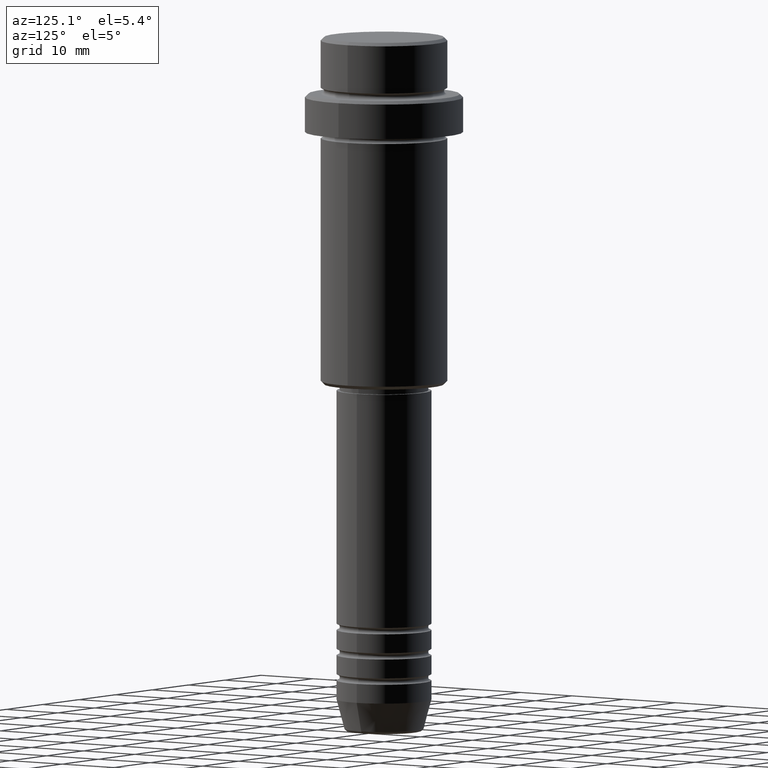
[diagram: clean part render]
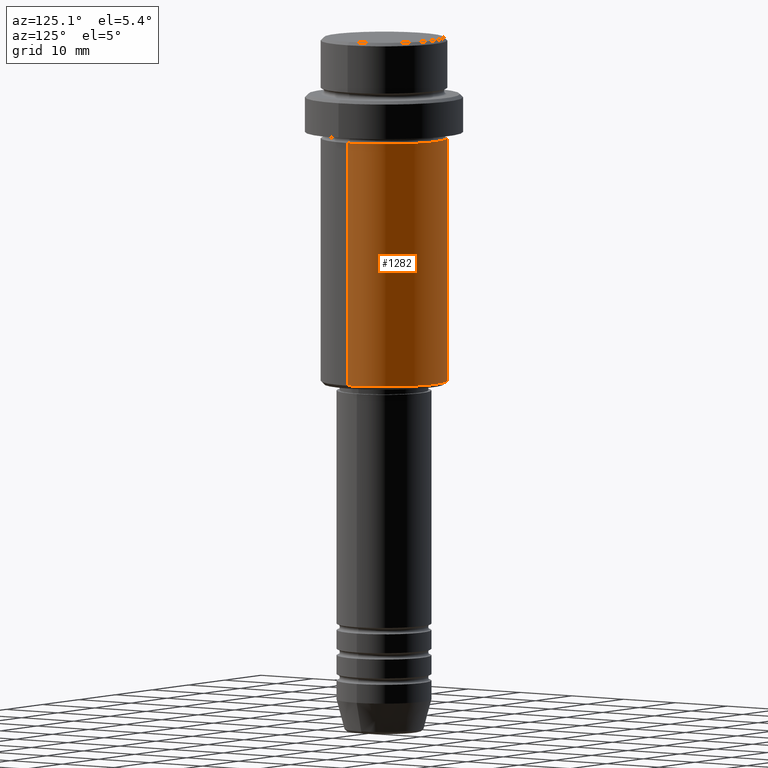
[diagram: same view with one face highlighted and labeled with its STEP entity id]
A machine part, auxiliary view. The second image highlights one B-rep face of the part: STEP entity #1282.
In plain terms, the highlighted cylindrical surface (partial cylindrical patch) has radius 10 mm, axis along (-0, -0, 1).
Its self-contained STEP definition (entity closure, byte-faithful):
#25 = EDGE_CURVE ( 'NONE', #944, #1015, #1136, .T. ) ;
#29 = AXIS2_PLACEMENT_3D ( 'NONE', #477, #1348, #372 ) ;
#98 = CARTESIAN_POINT ( 'NONE',  ( 0.000000000000000000, 0.000000000000000000, -54.50000000000000711 ) ) ;
#116 = ORIENTED_EDGE ( 'NONE', *, *, #825, .T. ) ;
#158 = CARTESIAN_POINT ( 'NONE',  ( -10.00000000000000000, 1.224646799147353256E-15, -54.50000000000000711 ) ) ;
#204 = CARTESIAN_POINT ( 'NONE',  ( 10.00000000000000000, 0.000000000000000000, -54.50000000000000711 ) ) ;
#207 = EDGE_CURVE ( 'NONE', #944, #681, #1319, .T. ) ;
#217 = CARTESIAN_POINT ( 'NONE',  ( 0.000000000000000000, 0.000000000000000000, 0.000000000000000000 ) ) ;
#311 = ORIENTED_EDGE ( 'NONE', *, *, #25, .T. ) ;
#372 = DIRECTION ( 'NONE',  ( 1.000000000000000000, 0.000000000000000000, 0.000000000000000000 ) ) ;
#404 = DIRECTION ( 'NONE',  ( -0.000000000000000000, -0.000000000000000000, 1.000000000000000000 ) ) ;
#407 = CARTESIAN_POINT ( 'NONE',  ( 10.00000000000000000, 0.000000000000000000, -16.00000000000000000 ) ) ;
#477 = CARTESIAN_POINT ( 'NONE',  ( 0.000000000000000000, 0.000000000000000000, -16.00000000000000000 ) ) ;
#546 = DIRECTION ( 'NONE',  ( -0.000000000000000000, -0.000000000000000000, 1.000000000000000000 ) ) ;
#560 = CIRCLE ( 'NONE', #29, 10.00000000000000000 ) ;
#561 = AXIS2_PLACEMENT_3D ( 'NONE', #217, #546, #1281 ) ;
#608 = LINE ( 'NONE', #1147, #1021 ) ;
#637 = CYLINDRICAL_SURFACE ( 'NONE', #561, 10.00000000000000000 ) ;
#652 = FACE_OUTER_BOUND ( 'NONE', #878, .T. ) ;
#681 = VERTEX_POINT ( 'NONE', #407 ) ;
#725 = DIRECTION ( 'NONE',  ( -0.000000000000000000, -0.000000000000000000, 1.000000000000000000 ) ) ;
#825 = EDGE_CURVE ( 'NONE', #1015, #1026, #608, .T. ) ;
#878 = EDGE_LOOP ( 'NONE', ( #311, #116, #987, #1132 ) ) ;
#927 = DIRECTION ( 'NONE',  ( -0.000000000000000000, -0.000000000000000000, 1.000000000000000000 ) ) ;
#944 = VERTEX_POINT ( 'NONE', #204 ) ;
#987 = ORIENTED_EDGE ( 'NONE', *, *, #1078, .F. ) ;
#1015 = VERTEX_POINT ( 'NONE', #158 ) ;
#1021 = VECTOR ( 'NONE', #927, 1000.000000000000000 ) ;
#1026 = VERTEX_POINT ( 'NONE', #1342 ) ;
#1075 = DIRECTION ( 'NONE',  ( -1.000000000000000000, 0.000000000000000000, 0.000000000000000000 ) ) ;
#1078 = EDGE_CURVE ( 'NONE', #681, #1026, #560, .T. ) ;
#1132 = ORIENTED_EDGE ( 'NONE', *, *, #207, .F. ) ;
#1134 = AXIS2_PLACEMENT_3D ( 'NONE', #98, #404, #1075 ) ;
#1136 = CIRCLE ( 'NONE', #1134, 10.00000000000000000 ) ;
#1147 = CARTESIAN_POINT ( 'NONE',  ( -10.00000000000000000, 1.224646799147353256E-15, 0.000000000000000000 ) ) ;
#1281 = DIRECTION ( 'NONE',  ( 1.000000000000000000, 0.000000000000000000, 0.000000000000000000 ) ) ;
#1282 = ADVANCED_FACE ( 'NONE', ( #652 ), #637, .T. ) ;
#1319 = LINE ( 'NONE', #1389, #1393 ) ;
#1342 = CARTESIAN_POINT ( 'NONE',  ( -10.00000000000000000, 1.224646799147353256E-15, -16.00000000000000000 ) ) ;
#1348 = DIRECTION ( 'NONE',  ( -0.000000000000000000, -0.000000000000000000, 1.000000000000000000 ) ) ;
#1389 = CARTESIAN_POINT ( 'NONE',  ( 10.00000000000000000, 0.000000000000000000, 0.000000000000000000 ) ) ;
#1393 = VECTOR ( 'NONE', #725, 1000.000000000000000 ) ;